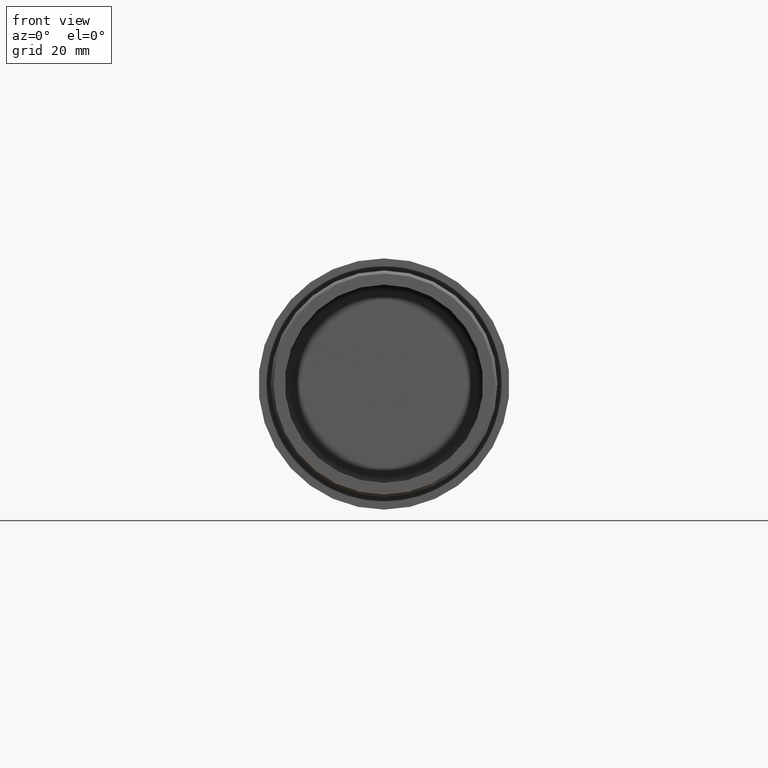
[diagram: clean part render]
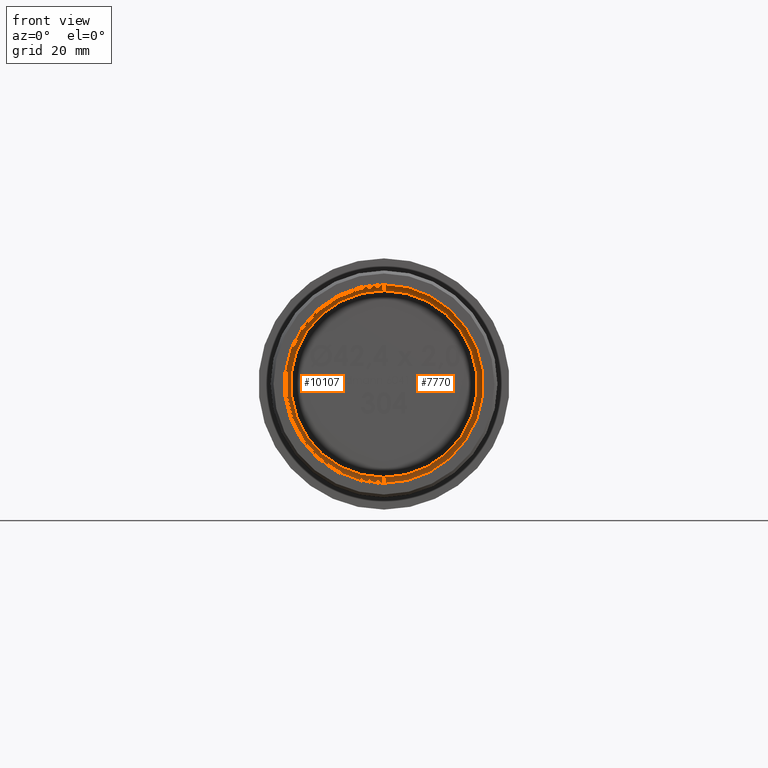
[diagram: same view with one multi-face feature highlighted, each face labeled with its STEP entity id]
A machine part, front view. The highlighted faces form ONE feature: a constant-radius fillet chain: 2 tangent blend faces with common blend radius 1 mm. The faces share edges in the B-rep.
Their STEP definitions:
[1] entity #7770 (Torus):
#86 = CARTESIAN_POINT ( 'NONE',  ( 0.0000000000000000000, 31.00000000000000000, 0.0000000000000000000 ) ) ;
#125 = ORIENTED_EDGE ( 'NONE', *, *, #18420, .F. ) ;
#1221 = FACE_OUTER_BOUND ( 'NONE', #10983, .T. ) ;
#1742 = AXIS2_PLACEMENT_3D ( 'NONE', #86, #12166, #15168 ) ;
#2192 = ORIENTED_EDGE ( 'NONE', *, *, #8694, .T. ) ;
#3290 = DIRECTION ( 'NONE',  ( -1.224646799147353500E-016, 0.0000000000000000000, -1.000000000000000000 ) ) ;
#3358 = ORIENTED_EDGE ( 'NONE', *, *, #15087, .F. ) ;
#5433 = VERTEX_POINT ( 'NONE', #17280 ) ;
#6383 = EDGE_CURVE ( 'NONE', #8675, #5433, #7225, .T. ) ;
#6793 = CARTESIAN_POINT ( 'NONE',  ( 0.0000000000000000000, 31.00000000000000000, -15.75000000000000000 ) ) ;
#7225 = CIRCLE ( 'NONE', #13503, 1.000000000000000900 ) ;
#7768 = CARTESIAN_POINT ( 'NONE',  ( 0.0000000000000000000, 32.00000000000000000, -15.75000000000000000 ) ) ;
#7770 = ADVANCED_FACE ( 'NONE', ( #1221 ), #11752, .F. ) ;
#8075 = CARTESIAN_POINT ( 'NONE',  ( 0.0000000000000000000, 31.00000000000000000, 0.0000000000000000000 ) ) ;
#8675 = VERTEX_POINT ( 'NONE', #7768 ) ;
#8694 = EDGE_CURVE ( 'NONE', #5433, #17066, #8889, .T. ) ;
#8889 = CIRCLE ( 'NONE', #1742, 16.75000000000000000 ) ;
#9285 = CARTESIAN_POINT ( 'NONE',  ( 1.928818708657081300E-015, 31.00000000000000000, 15.75000000000000000 ) ) ;
#9486 = AXIS2_PLACEMENT_3D ( 'NONE', #9285, #17073, #3290 ) ;
#10282 = DIRECTION ( 'NONE',  ( 0.0000000000000000000, 0.0000000000000000000, -1.000000000000000000 ) ) ;
#10983 = EDGE_LOOP ( 'NONE', ( #3358, #125, #12148, #2192 ) ) ;
#11081 = DIRECTION ( 'NONE',  ( 0.0000000000000000000, 0.0000000000000000000, -1.000000000000000000 ) ) ;
#11208 = DIRECTION ( 'NONE',  ( -1.000000000000000000, 0.0000000000000000000, 0.0000000000000000000 ) ) ;
#11752 = TOROIDAL_SURFACE ( 'NONE', #14399, 15.75000000000000000, 1.000000000000000900 ) ;
#12148 = ORIENTED_EDGE ( 'NONE', *, *, #6383, .T. ) ;
#12166 = DIRECTION ( 'NONE',  ( -0.0000000000000000000, -1.000000000000000000, -0.0000000000000000000 ) ) ;
#12925 = AXIS2_PLACEMENT_3D ( 'NONE', #16467, #18029, #10282 ) ;
#13503 = AXIS2_PLACEMENT_3D ( 'NONE', #6793, #11208, #15796 ) ;
#13799 = CIRCLE ( 'NONE', #12925, 15.75000000000000000 ) ;
#14399 = AXIS2_PLACEMENT_3D ( 'NONE', #8075, #15608, #11081 ) ;
#14845 = CIRCLE ( 'NONE', #9486, 1.000000000000000900 ) ;
#15087 = EDGE_CURVE ( 'NONE', #15754, #17066, #14845, .T. ) ;
#15168 = DIRECTION ( 'NONE',  ( 0.0000000000000000000, 0.0000000000000000000, -1.000000000000000000 ) ) ;
#15608 = DIRECTION ( 'NONE',  ( -0.0000000000000000000, -1.000000000000000000, -0.0000000000000000000 ) ) ;
#15754 = VERTEX_POINT ( 'NONE', #16969 ) ;
#15796 = DIRECTION ( 'NONE',  ( 0.0000000000000000000, 0.0000000000000000000, 1.000000000000000000 ) ) ;
#16345 = CARTESIAN_POINT ( 'NONE',  ( 2.051283388571816900E-015, 31.00000000000000000, 16.75000000000000000 ) ) ;
#16467 = CARTESIAN_POINT ( 'NONE',  ( 0.0000000000000000000, 32.00000000000000000, 0.0000000000000000000 ) ) ;
#16969 = CARTESIAN_POINT ( 'NONE',  ( 1.990051048614449300E-015, 32.00000000000000000, 15.75000000000000000 ) ) ;
#17066 = VERTEX_POINT ( 'NONE', #16345 ) ;
#17073 = DIRECTION ( 'NONE',  ( 1.000000000000000000, 0.0000000000000000000, -1.224646799147353200E-016 ) ) ;
#17280 = CARTESIAN_POINT ( 'NONE',  ( 0.0000000000000000000, 31.00000000000000000, -16.75000000000000000 ) ) ;
#18029 = DIRECTION ( 'NONE',  ( -0.0000000000000000000, -1.000000000000000000, -0.0000000000000000000 ) ) ;
#18420 = EDGE_CURVE ( 'NONE', #8675, #15754, #13799, .T. ) ;
[2] entity #10107 (Torus):
#2260 = AXIS2_PLACEMENT_3D ( 'NONE', #11325, #12709, #8001 ) ;
#2998 = ORIENTED_EDGE ( 'NONE', *, *, #6383, .F. ) ;
#3290 = DIRECTION ( 'NONE',  ( -1.224646799147353500E-016, 0.0000000000000000000, -1.000000000000000000 ) ) ;
#3550 = TOROIDAL_SURFACE ( 'NONE', #2260, 15.75000000000000000, 1.000000000000000900 ) ;
#5433 = VERTEX_POINT ( 'NONE', #17280 ) ;
#6179 = CIRCLE ( 'NONE', #15114, 15.75000000000000000 ) ;
#6383 = EDGE_CURVE ( 'NONE', #8675, #5433, #7225, .T. ) ;
#6793 = CARTESIAN_POINT ( 'NONE',  ( 0.0000000000000000000, 31.00000000000000000, -15.75000000000000000 ) ) ;
#7145 = EDGE_LOOP ( 'NONE', ( #9757, #16874, #18912, #2998 ) ) ;
#7225 = CIRCLE ( 'NONE', #13503, 1.000000000000000900 ) ;
#7768 = CARTESIAN_POINT ( 'NONE',  ( 0.0000000000000000000, 32.00000000000000000, -15.75000000000000000 ) ) ;
#8001 = DIRECTION ( 'NONE',  ( 0.0000000000000000000, 0.0000000000000000000, -1.000000000000000000 ) ) ;
#8675 = VERTEX_POINT ( 'NONE', #7768 ) ;
#9102 = AXIS2_PLACEMENT_3D ( 'NONE', #12942, #13005, #16082 ) ;
#9285 = CARTESIAN_POINT ( 'NONE',  ( 1.928818708657081300E-015, 31.00000000000000000, 15.75000000000000000 ) ) ;
#9486 = AXIS2_PLACEMENT_3D ( 'NONE', #9285, #17073, #3290 ) ;
#9598 = CARTESIAN_POINT ( 'NONE',  ( 0.0000000000000000000, 32.00000000000000000, 0.0000000000000000000 ) ) ;
#9613 = CIRCLE ( 'NONE', #9102, 16.75000000000000000 ) ;
#9757 = ORIENTED_EDGE ( 'NONE', *, *, #17799, .F. ) ;
#10107 = ADVANCED_FACE ( 'NONE', ( #13124 ), #3550, .F. ) ;
#11198 = DIRECTION ( 'NONE',  ( 0.0000000000000000000, 0.0000000000000000000, -1.000000000000000000 ) ) ;
#11208 = DIRECTION ( 'NONE',  ( -1.000000000000000000, 0.0000000000000000000, 0.0000000000000000000 ) ) ;
#11325 = CARTESIAN_POINT ( 'NONE',  ( 0.0000000000000000000, 31.00000000000000000, 0.0000000000000000000 ) ) ;
#12709 = DIRECTION ( 'NONE',  ( -0.0000000000000000000, -1.000000000000000000, -0.0000000000000000000 ) ) ;
#12942 = CARTESIAN_POINT ( 'NONE',  ( 0.0000000000000000000, 31.00000000000000000, 0.0000000000000000000 ) ) ;
#13005 = DIRECTION ( 'NONE',  ( -0.0000000000000000000, -1.000000000000000000, -0.0000000000000000000 ) ) ;
#13124 = FACE_OUTER_BOUND ( 'NONE', #7145, .T. ) ;
#13503 = AXIS2_PLACEMENT_3D ( 'NONE', #6793, #11208, #15796 ) ;
#14843 = EDGE_CURVE ( 'NONE', #17066, #5433, #9613, .T. ) ;
#14845 = CIRCLE ( 'NONE', #9486, 1.000000000000000900 ) ;
#15087 = EDGE_CURVE ( 'NONE', #15754, #17066, #14845, .T. ) ;
#15114 = AXIS2_PLACEMENT_3D ( 'NONE', #9598, #17257, #11198 ) ;
#15754 = VERTEX_POINT ( 'NONE', #16969 ) ;
#15796 = DIRECTION ( 'NONE',  ( 0.0000000000000000000, 0.0000000000000000000, 1.000000000000000000 ) ) ;
#16082 = DIRECTION ( 'NONE',  ( 0.0000000000000000000, 0.0000000000000000000, -1.000000000000000000 ) ) ;
#16345 = CARTESIAN_POINT ( 'NONE',  ( 2.051283388571816900E-015, 31.00000000000000000, 16.75000000000000000 ) ) ;
#16874 = ORIENTED_EDGE ( 'NONE', *, *, #15087, .T. ) ;
#16969 = CARTESIAN_POINT ( 'NONE',  ( 1.990051048614449300E-015, 32.00000000000000000, 15.75000000000000000 ) ) ;
#17066 = VERTEX_POINT ( 'NONE', #16345 ) ;
#17073 = DIRECTION ( 'NONE',  ( 1.000000000000000000, 0.0000000000000000000, -1.224646799147353200E-016 ) ) ;
#17257 = DIRECTION ( 'NONE',  ( -0.0000000000000000000, -1.000000000000000000, -0.0000000000000000000 ) ) ;
#17280 = CARTESIAN_POINT ( 'NONE',  ( 0.0000000000000000000, 31.00000000000000000, -16.75000000000000000 ) ) ;
#17799 = EDGE_CURVE ( 'NONE', #15754, #8675, #6179, .T. ) ;
#18912 = ORIENTED_EDGE ( 'NONE', *, *, #14843, .T. ) ;